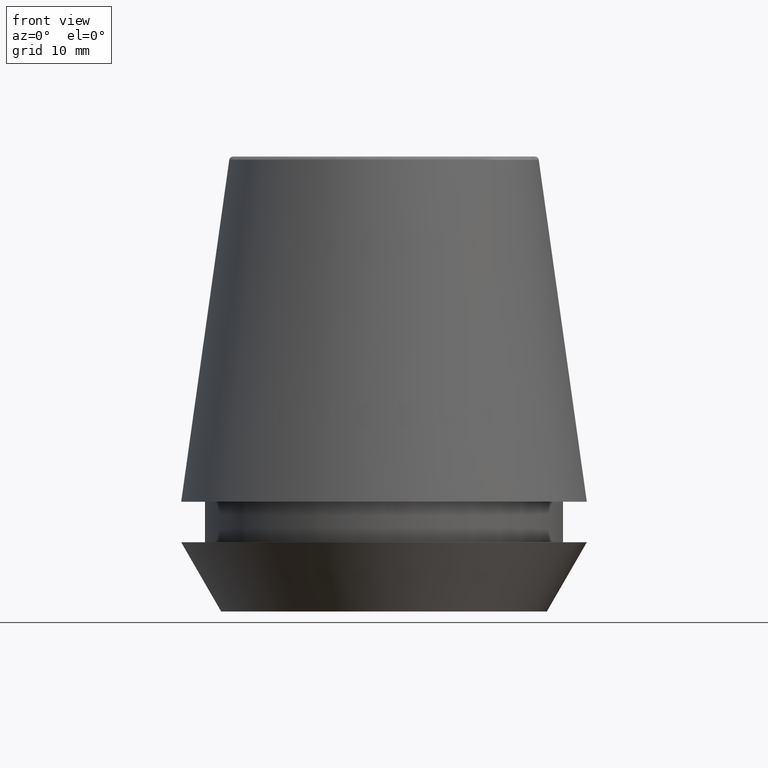
[diagram: clean part render]
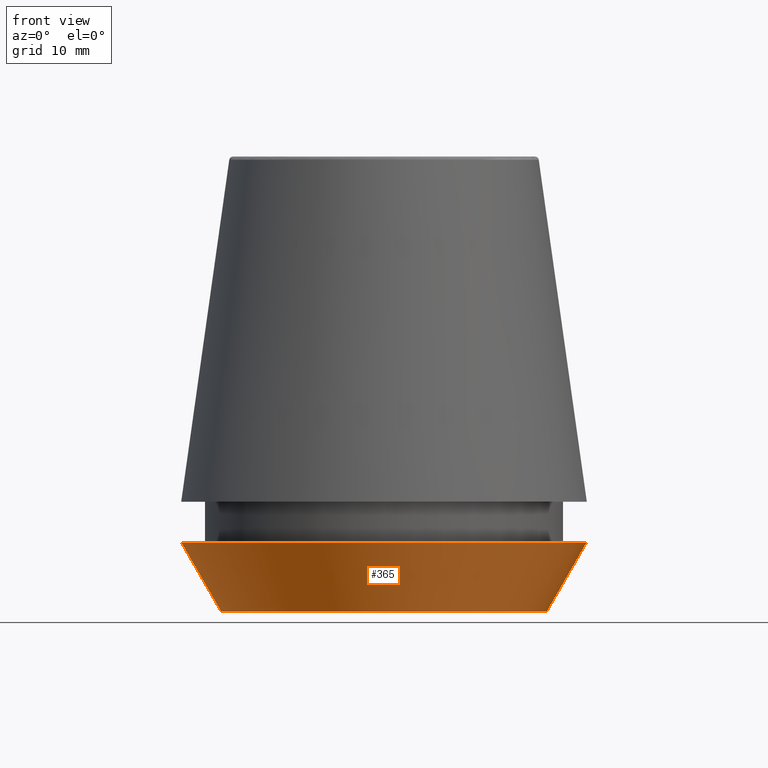
[diagram: same view with one face highlighted and labeled with its STEP entity id]
A machine part, front view. The second image highlights one B-rep face of the part: STEP entity #365.
In plain terms, the highlighted conical surface has half-angle 30 deg.
Its self-contained STEP definition (entity closure, byte-faithful):
#2 = ORIENTED_EDGE ( 'NONE', *, *, #170, .F. ) ;
#3 = VERTEX_POINT ( 'NONE', #18 ) ;
#18 = CARTESIAN_POINT ( 'NONE',  ( -16.45854811567268100, 2.263058382549599700E-015, 0.0000000000000000000 ) ) ;
#30 = VERTEX_POINT ( 'NONE', #319 ) ;
#46 = EDGE_CURVE ( 'NONE', #3, #70, #309, .T. ) ;
#70 = VERTEX_POINT ( 'NONE', #127 ) ;
#79 = DIRECTION ( 'NONE',  ( -0.0000000000000000000, -0.0000000000000000000, 1.000000000000000000 ) ) ;
#80 = CARTESIAN_POINT ( 'NONE',  ( 0.0000000000000000000, 0.0000000000000000000, 0.0000000000000000000 ) ) ;
#94 = DIRECTION ( 'NONE',  ( -0.4999999999999941700, 6.123233995736694500E-017, 0.8660254037844420400 ) ) ;
#104 = DIRECTION ( 'NONE',  ( -0.0000000000000000000, -0.0000000000000000000, 1.000000000000000000 ) ) ;
#106 = DIRECTION ( 'NONE',  ( 0.4999999999999941700, 0.0000000000000000000, 0.8660254037844420400 ) ) ;
#127 = CARTESIAN_POINT ( 'NONE',  ( -20.50000000000000000, 2.510525938252074100E-015, 7.000000000000006200 ) ) ;
#142 = EDGE_CURVE ( 'NONE', #3, #30, #289, .T. ) ;
#169 = ORIENTED_EDGE ( 'NONE', *, *, #239, .T. ) ;
#170 = EDGE_CURVE ( 'NONE', #70, #175, #268, .T. ) ;
#175 = VERTEX_POINT ( 'NONE', #252 ) ;
#185 = CONICAL_SURFACE ( 'NONE', #375, 16.45854811567268100, 0.5235987755982921500 ) ;
#198 = AXIS2_PLACEMENT_3D ( 'NONE', #295, #104, #330 ) ;
#216 = CARTESIAN_POINT ( 'NONE',  ( -16.45854811567268100, 2.015590826847124800E-015, 0.0000000000000000000 ) ) ;
#224 = AXIS2_PLACEMENT_3D ( 'NONE', #251, #79, #292 ) ;
#235 = FACE_OUTER_BOUND ( 'NONE', #255, .T. ) ;
#239 = EDGE_CURVE ( 'NONE', #30, #175, #250, .T. ) ;
#250 = LINE ( 'NONE', #279, #262 ) ;
#251 = CARTESIAN_POINT ( 'NONE',  ( 0.0000000000000000000, 0.0000000000000000000, 0.0000000000000000000 ) ) ;
#252 = CARTESIAN_POINT ( 'NONE',  ( 20.50000000000000000, 0.0000000000000000000, 7.000000000000006200 ) ) ;
#255 = EDGE_LOOP ( 'NONE', ( #300, #256, #169, #2 ) ) ;
#256 = ORIENTED_EDGE ( 'NONE', *, *, #142, .T. ) ;
#262 = VECTOR ( 'NONE', #106, 1000.000000000000000 ) ;
#268 = CIRCLE ( 'NONE', #198, 20.50000000000000000 ) ;
#279 = CARTESIAN_POINT ( 'NONE',  ( 16.45854811567268100, 0.0000000000000000000, 0.0000000000000000000 ) ) ;
#289 = CIRCLE ( 'NONE', #224, 16.45854811567268100 ) ;
#292 = DIRECTION ( 'NONE',  ( 1.000000000000000000, 0.0000000000000000000, 0.0000000000000000000 ) ) ;
#293 = DIRECTION ( 'NONE',  ( -0.0000000000000000000, -0.0000000000000000000, 1.000000000000000000 ) ) ;
#295 = CARTESIAN_POINT ( 'NONE',  ( 0.0000000000000000000, 0.0000000000000000000, 7.000000000000006200 ) ) ;
#300 = ORIENTED_EDGE ( 'NONE', *, *, #46, .F. ) ;
#309 = LINE ( 'NONE', #216, #341 ) ;
#319 = CARTESIAN_POINT ( 'NONE',  ( 16.45854811567268100, 0.0000000000000000000, 0.0000000000000000000 ) ) ;
#330 = DIRECTION ( 'NONE',  ( 1.000000000000000000, 0.0000000000000000000, 0.0000000000000000000 ) ) ;
#341 = VECTOR ( 'NONE', #94, 1000.000000000000000 ) ;
#363 = DIRECTION ( 'NONE',  ( 1.000000000000000000, 0.0000000000000000000, 0.0000000000000000000 ) ) ;
#365 = ADVANCED_FACE ( 'NONE', ( #235 ), #185, .T. ) ;
#375 = AXIS2_PLACEMENT_3D ( 'NONE', #80, #293, #363 ) ;